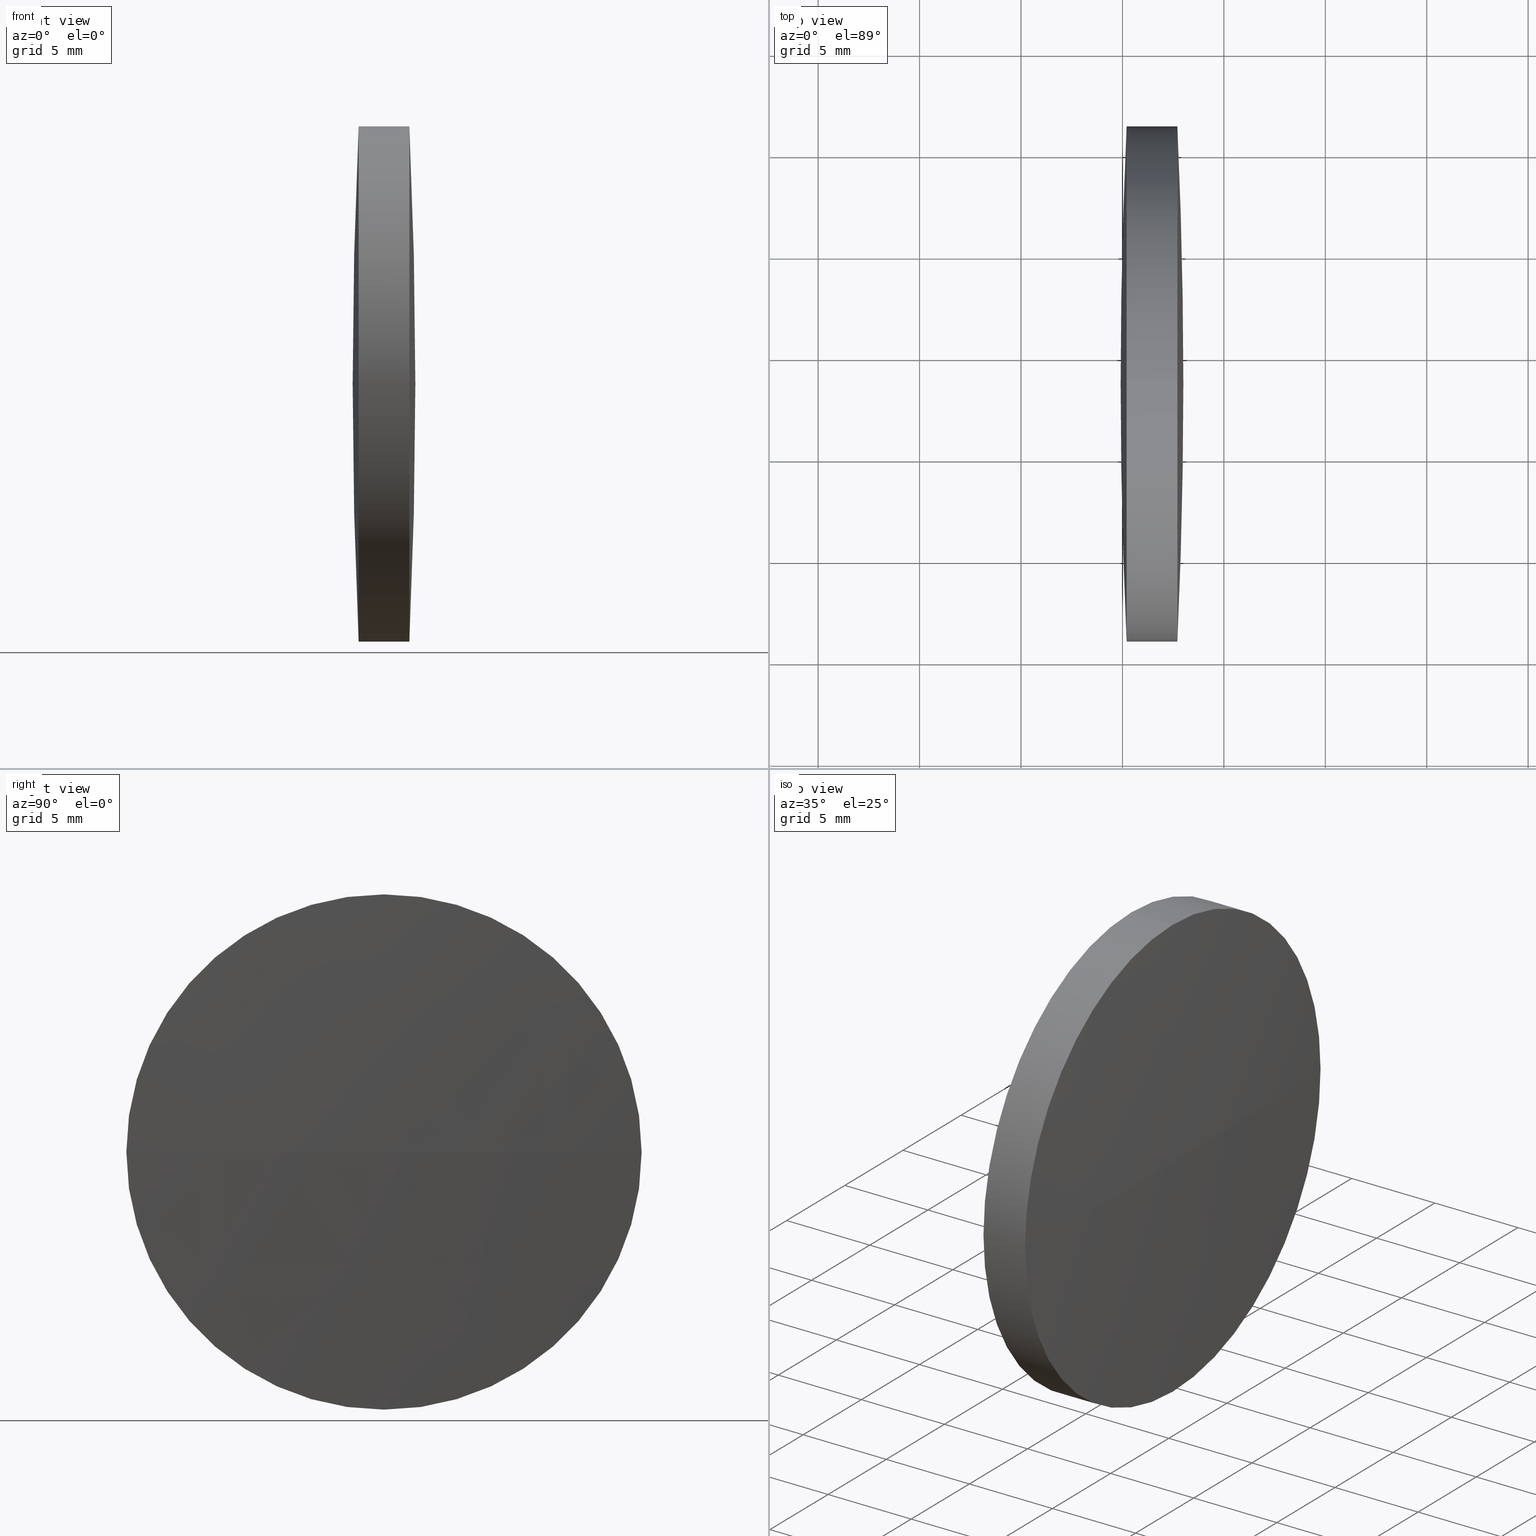
[diagram: canonical four-view strip — front | top / right | iso, engineering-drawing reading convention]
A machine part, canonical four-view strip (front | top / right | iso — engineering-drawing reading convention). The complete STEP part file that produces these views, byte-faithful:
ISO-10303-21;
HEADER;
FILE_DESCRIPTION (( 'STEP AP203' ),
    '1' );
FILE_NAME ('110101.STEP',
    '2019-07-08T06:48:02',
    ( '' ),
    ( '' ),
    'SwSTEP 2.0',
    'SolidWorks 2016',
    '' );
FILE_SCHEMA (( 'CONFIG_CONTROL_DESIGN' ));
ENDSEC;

DATA;
#1 = CARTESIAN_POINT ( 'NONE',  ( 83.37198105152673100, 48.61611302318478100, 0.0000000000000000000 ) ) ;
#2 = CALENDAR_DATE ( 2019, 8, 7 ) ;
#3 = CC_DESIGN_DATE_AND_TIME_ASSIGNMENT ( #303, #32, ( #98 ) ) ;
#4 = DIRECTION ( 'NONE',  ( 0.0000000000000000000, 0.0000000000000000000, 1.000000000000000000 ) ) ;
#5 = CALENDAR_DATE ( 2019, 8, 7 ) ;
#6 = EDGE_CURVE ( 'NONE', #74, #83, #142, .T. ) ;
#7 = VERTEX_POINT ( 'NONE', #86 ) ;
#8 = DIRECTION ( 'NONE',  ( 0.0000000000000000000, 1.000000000000000000, 1.224646799147353200E-016 ) ) ;
#9 = ORIENTED_EDGE ( 'NONE', *, *, #302, .F. ) ;
#10 = CARTESIAN_POINT ( 'NONE',  ( 85.20819446037681600, 48.61611302318478100, 0.0000000000000000000 ) ) ;
#11 = APPLICATION_PROTOCOL_DEFINITION ( 'international standard', 'config_control_design', 1994, #167 ) ;
#12 = DIRECTION ( 'NONE',  ( -0.0000000000000000000, 0.0000000000000000000, 1.000000000000000000 ) ) ;
#13 = PERSON_AND_ORGANIZATION ( #242, #279 ) ;
#14 = DIRECTION ( 'NONE',  ( 0.0000000000000000000, 1.000000000000000000, 0.0000000000000000000 ) ) ;
#15 = EDGE_CURVE ( 'NONE', #249, #7, #320, .T. ) ;
#16 = AXIS2_PLACEMENT_3D ( 'NONE', #67, #38, #14 ) ;
#17 = ORIENTED_EDGE ( 'NONE', *, *, #55, .T. ) ;
#18 = PERSON_AND_ORGANIZATION ( #242, #279 ) ;
#19 = CC_DESIGN_APPROVAL ( #84, ( #201 ) ) ;
#20 = PERSON_AND_ORGANIZATION ( #242, #279 ) ;
#21 = DESIGN_CONTEXT ( 'detailed design', #124, 'design' ) ;
#22 = APPLICATION_PROTOCOL_DEFINITION ( 'international standard', 'config_control_design', 1994, #124 ) ;
#23 = ORIENTED_EDGE ( 'NONE', *, *, #139, .F. ) ;
#24 = PERSON_AND_ORGANIZATION ( #242, #279 ) ;
#25 = EDGE_CURVE ( 'NONE', #301, #7, #75, .T. ) ;
#26 = PRODUCT ( '110101', '110101', '', ( #110 ) ) ;
#27 = EDGE_LOOP ( 'NONE', ( #95, #324, #232, #328 ) ) ;
#28 = PERSON_AND_ORGANIZATION ( #242, #279 ) ;
#29 = APPROVAL ( #169, 'δָ��' ) ;
#30 = DATE_AND_TIME ( #250, #309 ) ;
#31 = CARTESIAN_POINT ( 'NONE',  ( 85.20819446037681600, 48.61611302318478100, 0.0000000000000000000 ) ) ;
#32 = DATE_TIME_ROLE ( 'classification_date' ) ;
#33 = DIRECTION ( 'NONE',  ( -1.000000000000000000, -0.0000000000000000000, -0.0000000000000000000 ) ) ;
#34 = PRODUCT_DEFINITION_SHAPE ( 'NONE', 'NONE',  #233 ) ;
#35 = APPLICATION_CONTEXT ( 'configuration controlled 3d designs of mechanical parts and assemblies' ) ;
#36 = COORDINATED_UNIVERSAL_TIME_OFFSET ( 8, 0, .AHEAD. ) ;
#37 = ORIENTED_EDGE ( 'NONE', *, *, #176, .F. ) ;
#38 = DIRECTION ( 'NONE',  ( -0.0000000000000000000, 0.0000000000000000000, -1.000000000000000000 ) ) ;
#39 = SHAPE_DEFINITION_REPRESENTATION ( #268, #264 ) ;
#40 = PERSON_AND_ORGANIZATION ( #242, #279 ) ;
#41 = CIRCLE ( 'NONE', #137, 12.69999999999999600 ) ;
#42 = EDGE_CURVE ( 'NONE', #7, #178, #262, .T. ) ;
#43 = DATE_AND_TIME ( #190, #181 ) ;
#44 = CARTESIAN_POINT ( 'NONE',  ( 358.4720611425593100, 48.61611302318401300, 0.0000000000000000000 ) ) ;
#45 = ORIENTED_EDGE ( 'NONE', *, *, #302, .T. ) ;
#46 = EDGE_CURVE ( 'NONE', #306, #162, #286, .T. ) ;
#47 = PERSON_AND_ORGANIZATION ( #242, #279 ) ;
#48 = CC_DESIGN_SECURITY_CLASSIFICATION ( #98, ( #275 ) ) ;
#49 = PERSON_AND_ORGANIZATION_ROLE ( 'creator' ) ;
#50 = CC_DESIGN_PERSON_AND_ORGANIZATION_ASSIGNMENT ( #20, #216, ( #207 ) ) ;
#51 = APPROVAL_DATE_TIME ( #77, #84 ) ;
#52 = EDGE_LOOP ( 'NONE', ( #175, #17, #184, #226, #79, #318 ) ) ;
#53 = COORDINATED_UNIVERSAL_TIME_OFFSET ( 8, 0, .AHEAD. ) ;
#54 = DIRECTION ( 'NONE',  ( 0.0000000000000000000, 0.0000000000000000000, 1.000000000000000000 ) ) ;
#55 = EDGE_CURVE ( 'NONE', #301, #235, #108, .T. ) ;
#56 = DIRECTION ( 'NONE',  ( 0.0000000000000000000, 0.0000000000000000000, 1.000000000000000000 ) ) ;
#57 = PERSON_AND_ORGANIZATION_ROLE ( 'creator' ) ;
#58 = ORIENTED_EDGE ( 'NONE', *, *, #92, .T. ) ;
#59 = CARTESIAN_POINT ( 'NONE',  ( -185.5556735932195200, 48.61611302318475200, 0.0000000000000000000 ) ) ;
#60 = CALENDAR_DATE ( 2019, 8, 7 ) ;
#61 = FACE_OUTER_BOUND ( 'NONE', #27, .T. ) ;
#62 = DESIGN_CONTEXT ( 'detailed design', #198, 'design' ) ;
#63 = LOCAL_TIME ( 14, 48, 2.000000000000000000, #53 ) ;
#64 = CARTESIAN_POINT ( 'NONE',  ( -185.5556735932195200, 48.61611302318475200, 0.0000000000000000000 ) ) ;
#65 = COORDINATED_UNIVERSAL_TIME_OFFSET ( 8, 0, .AHEAD. ) ;
#66 = EDGE_CURVE ( 'NONE', #178, #243, #69, .T. ) ;
#67 = CARTESIAN_POINT ( 'NONE',  ( 358.4720611425593100, 48.61611302318401300, 0.0000000000000000000 ) ) ;
#68 = APPROVAL ( #333, 'δָ��' ) ;
#69 = CIRCLE ( 'NONE', #326, 273.5588251804310300 ) ;
#70 = DATE_AND_TIME ( #60, #265 ) ;
#71 = CARTESIAN_POINT ( 'NONE',  ( 87.70819308894824900, 48.61611302318478100, -12.69999999999999600 ) ) ;
#72 = PERSON_AND_ORGANIZATION_ROLE ( 'design_supplier' ) ;
#73 = CARTESIAN_POINT ( 'NONE',  ( 0.0000000000000000000, 0.0000000000000000000, 0.0000000000000000000 ) ) ;
#74 = VERTEX_POINT ( 'NONE', #164 ) ;
#75 = LINE ( 'NONE', #88, #187 ) ;
#76 = DATE_TIME_ROLE ( 'creation_date' ) ;
#77 = DATE_AND_TIME ( #293, #159 ) ;
#78 = CC_DESIGN_APPROVAL ( #68, ( #233 ) ) ;
#79 = ORIENTED_EDGE ( 'NONE', *, *, #92, .F. ) ;
#80 = APPROVAL_STATUS ( 'not_yet_approved' ) ;
#81 = DIRECTION ( 'NONE',  ( -1.000000000000000000, -0.0000000000000000000, -0.0000000000000000000 ) ) ;
#82 = DATE_AND_TIME ( #2, #63 ) ;
#83 = VERTEX_POINT ( 'NONE', #140 ) ;
#84 = APPROVAL ( #269, 'δָ��' ) ;
#85 = APPROVAL_DATE_TIME ( #236, #179 ) ;
#86 = CARTESIAN_POINT ( 'NONE',  ( 85.20819446037681600, 48.61611302318478100, -12.69999999999999600 ) ) ;
#87 = CARTESIAN_POINT ( 'NONE',  ( 87.70819308894824900, 48.61611302318478100, 0.0000000000000000000 ) ) ;
#88 = CARTESIAN_POINT ( 'NONE',  ( 83.37198105152673100, 48.61611302318478100, -12.69999999999999600 ) ) ;
#89 = CYLINDRICAL_SURFACE ( 'NONE', #211, 12.69999999999999600 ) ;
#90 = EDGE_LOOP ( 'NONE', ( #154, #219, #133, #278 ) ) ;
#91 = DATE_AND_TIME ( #163, #270 ) ;
#92 = EDGE_CURVE ( 'NONE', #178, #162, #41, .T. ) ;
#93 = ORIENTED_EDGE ( 'NONE', *, *, #25, .T. ) ;
#94 = SPHERICAL_SURFACE ( 'NONE', #218, 273.5588251804163100 ) ;
#95 = ORIENTED_EDGE ( 'NONE', *, *, #15, .T. ) ;
#96 =( NAMED_UNIT ( * ) SI_UNIT ( $, .STERADIAN. ) SOLID_ANGLE_UNIT ( ) );
#97 = APPROVAL_DATE_TIME ( #30, #145 ) ;
#98 = SECURITY_CLASSIFICATION ( '', '', #274 ) ;
#99 = DIRECTION ( 'NONE',  ( 0.0000000000000000000, 0.0000000000000000000, 1.000000000000000000 ) ) ;
#100 = CC_DESIGN_PERSON_AND_ORGANIZATION_ASSIGNMENT ( #202, #307, ( #256 ) ) ;
#101 = PERSON_AND_ORGANIZATION_ROLE ( 'creator' ) ;
#102 = ADVANCED_FACE ( 'NONE', ( #121 ), #89, .T. ) ;
#103 = CYLINDRICAL_SURFACE ( 'NONE', #329, 12.69999999999999600 ) ;
#104 = CIRCLE ( 'NONE', #229, 273.5588251804163100 ) ;
#105 = APPROVAL_PERSON_ORGANIZATION ( #28, #145, #109 ) ;
#106 = ORIENTED_EDGE ( 'NONE', *, *, #46, .F. ) ;
#107 = LOCAL_TIME ( 14, 48, 2.000000000000000000, #330 ) ;
#108 = CIRCLE ( 'NONE', #311, 12.69999999999999600 ) ;
#109 = APPROVAL_ROLE ( '' ) ;
#110 = MECHANICAL_CONTEXT ( 'NONE', #167, 'mechanical' ) ;
#111 = DATE_TIME_ROLE ( 'creation_date' ) ;
#112 = APPLICATION_PROTOCOL_DEFINITION ( 'international standard', 'config_control_design', 1994, #35 ) ;
#113 = CIRCLE ( 'NONE', #151, 12.69999999999999600 ) ;
#114 = PERSON_AND_ORGANIZATION ( #242, #279 ) ;
#115 = CARTESIAN_POINT ( 'NONE',  ( 87.70819308894824900, 48.61611302318478100, 0.0000000000000000000 ) ) ;
#116 = DIRECTION ( 'NONE',  ( -0.0000000000000000000, 0.0000000000000000000, -1.000000000000000000 ) ) ;
#117 = PERSON_AND_ORGANIZATION ( #242, #279 ) ;
#118 = CC_DESIGN_PERSON_AND_ORGANIZATION_ASSIGNMENT ( #323, #141, ( #26 ) ) ;
#119 = CC_DESIGN_SECURITY_CLASSIFICATION ( #256, ( #207 ) ) ;
#120 = CIRCLE ( 'NONE', #280, 12.69999999999999600 ) ;
#121 = FACE_OUTER_BOUND ( 'NONE', #52, .T. ) ;
#122 = COORDINATED_UNIVERSAL_TIME_OFFSET ( 8, 0, .AHEAD. ) ;
#123 = FACE_OUTER_BOUND ( 'NONE', #157, .T. ) ;
#124 = APPLICATION_CONTEXT ( 'configuration controlled 3d designs of mechanical parts and assemblies' ) ;
#125 = ORIENTED_EDGE ( 'NONE', *, *, #153, .F. ) ;
#126 = AXIS2_PLACEMENT_3D ( 'NONE', #147, #116, #291 ) ;
#127 = CARTESIAN_POINT ( 'NONE',  ( 87.70819308894824900, 48.61611302318478100, 12.69999999999999600 ) ) ;
#128 = LOCAL_TIME ( 14, 48, 2.000000000000000000, #245 ) ;
#129 = APPROVAL_ROLE ( '' ) ;
#130 = PERSON_AND_ORGANIZATION_ROLE ( 'creator' ) ;
#131 =( LENGTH_UNIT ( ) NAMED_UNIT ( * ) SI_UNIT ( .MILLI., .METRE. ) );
#132 = EDGE_CURVE ( 'NONE', #83, #301, #113, .T. ) ;
#133 = ORIENTED_EDGE ( 'NONE', *, *, #55, .F. ) ;
#134 = COORDINATED_UNIVERSAL_TIME_OFFSET ( 8, 0, .AHEAD. ) ;
#135 = SPHERICAL_SURFACE ( 'NONE', #222, 273.5588251804163100 ) ;
#136 = MANIFOLD_SOLID_BREP ( '��ת1', #150 ) ;
#137 = AXIS2_PLACEMENT_3D ( 'NONE', #31, #224, #310 ) ;
#138 = APPROVAL_DATE_TIME ( #91, #183 ) ;
#139 = EDGE_CURVE ( 'NONE', #74, #235, #104, .T. ) ;
#140 = CARTESIAN_POINT ( 'NONE',  ( 87.70819308894824900, 61.31611302318465600, 0.0000000000000000000 ) ) ;
#141 = PERSON_AND_ORGANIZATION_ROLE ( 'design_owner' ) ;
#142 = CIRCLE ( 'NONE', #294, 273.5588251804163100 ) ;
#143 = CARTESIAN_POINT ( 'NONE',  ( 87.70819308894824900, 48.61611302318478100, 0.0000000000000000000 ) ) ;
#144 = APPROVAL_STATUS ( 'not_yet_approved' ) ;
#145 = APPROVAL ( #80, 'δָ��' ) ;
#146 = COORDINATED_UNIVERSAL_TIME_OFFSET ( 8, 0, .AHEAD. ) ;
#147 = CARTESIAN_POINT ( 'NONE',  ( 358.4720611425593100, 48.61611302318401300, 0.0000000000000000000 ) ) ;
#148 = DIRECTION ( 'NONE',  ( -1.000000000000000000, -0.0000000000000000000, -0.0000000000000000000 ) ) ;
#149 = CC_DESIGN_DATE_AND_TIME_ASSIGNMENT ( #43, #273, ( #256 ) ) ;
#150 = CLOSED_SHELL ( 'NONE', ( #287, #165, #194, #253, #305, #102 ) ) ;
#151 = AXIS2_PLACEMENT_3D ( 'NONE', #143, #33, #56 ) ;
#152 = DIRECTION ( 'NONE',  ( -1.000000000000000000, -0.0000000000000000000, -0.0000000000000000000 ) ) ;
#153 = EDGE_CURVE ( 'NONE', #306, #83, #336, .T. ) ;
#154 = ORIENTED_EDGE ( 'NONE', *, *, #6, .F. ) ;
#155 = AXIS2_PLACEMENT_3D ( 'NONE', #73, #99, #334 ) ;
#156 = APPROVAL_PERSON_ORGANIZATION ( #234, #68, #257 ) ;
#157 = EDGE_LOOP ( 'NONE', ( #247, #58, #45, #267 ) ) ;
#158 = APPROVAL_STATUS ( 'not_yet_approved' ) ;
#159 = LOCAL_TIME ( 14, 48, 2.000000000000000000, #146 ) ;
#160 = CC_DESIGN_PERSON_AND_ORGANIZATION_ASSIGNMENT ( #276, #130, ( #207 ) ) ;
#161 = CC_DESIGN_PERSON_AND_ORGANIZATION_ASSIGNMENT ( #24, #57, ( #233 ) ) ;
#162 = VERTEX_POINT ( 'NONE', #289 ) ;
#163 = CALENDAR_DATE ( 2019, 8, 7 ) ;
#164 = CARTESIAN_POINT ( 'NONE',  ( 88.00315158719676800, 48.61611302318476600, 0.0000000000000000000 ) ) ;
#165 = ADVANCED_FACE ( 'NONE', ( #173 ), #94, .T. ) ;
#166 = CC_DESIGN_PERSON_AND_ORGANIZATION_ASSIGNMENT ( #221, #171, ( #214 ) ) ;
#167 = APPLICATION_CONTEXT ( 'configuration controlled 3d designs of mechanical parts and assemblies' ) ;
#168 = CARTESIAN_POINT ( 'NONE',  ( 83.37198105152673100, 48.61611302318478100, 0.0000000000000000000 ) ) ;
#169 = APPROVAL_STATUS ( 'not_yet_approved' ) ;
#170 = DIRECTION ( 'NONE',  ( -1.000000000000000000, -0.0000000000000000000, -0.0000000000000000000 ) ) ;
#171 = PERSON_AND_ORGANIZATION_ROLE ( 'design_owner' ) ;
#172 = CARTESIAN_POINT ( 'NONE',  ( -185.5556735932195200, 48.61611302318475200, 0.0000000000000000000 ) ) ;
#173 = FACE_OUTER_BOUND ( 'NONE', #90, .T. ) ;
#174 = DIRECTION ( 'NONE',  ( -1.000000000000000000, -0.0000000000000000000, -0.0000000000000000000 ) ) ;
#175 = ORIENTED_EDGE ( 'NONE', *, *, #25, .F. ) ;
#176 = EDGE_CURVE ( 'NONE', #235, #306, #315, .T. ) ;
#177 =( GEOMETRIC_REPRESENTATION_CONTEXT ( 3 ) GLOBAL_UNCERTAINTY_ASSIGNED_CONTEXT ( ( #238 ) ) GLOBAL_UNIT_ASSIGNED_CONTEXT ( ( #131, #217, #96 ) ) REPRESENTATION_CONTEXT ( 'NONE', 'WORKASPACE' ) );
#178 = VERTEX_POINT ( 'NONE', #204 ) ;
#179 = APPROVAL ( #158, 'δָ��' ) ;
#180 = DIRECTION ( 'NONE',  ( 0.0000000000000000000, 1.000000000000000000, 0.0000000000000000000 ) ) ;
#181 = LOCAL_TIME ( 14, 48, 2.000000000000000000, #122 ) ;
#182 = DIRECTION ( 'NONE',  ( 1.000000000000000000, 0.0000000000000000000, 0.0000000000000000000 ) ) ;
#183 = APPROVAL ( #144, 'δָ��' ) ;
#184 = ORIENTED_EDGE ( 'NONE', *, *, #176, .T. ) ;
#185 = COORDINATED_UNIVERSAL_TIME_OFFSET ( 8, 0, .AHEAD. ) ;
#186 = DIRECTION ( 'NONE',  ( 1.000000000000000000, 0.0000000000000000000, 0.0000000000000000000 ) ) ;
#187 = VECTOR ( 'NONE', #284, 1000.000000000000000 ) ;
#188 = CC_DESIGN_DATE_AND_TIME_ASSIGNMENT ( #70, #76, ( #201 ) ) ;
#189 = FACE_OUTER_BOUND ( 'NONE', #299, .T. ) ;
#190 = CALENDAR_DATE ( 2019, 8, 7 ) ;
#191 = APPROVAL_PERSON_ORGANIZATION ( #40, #29, #197 ) ;
#192 = ORIENTED_EDGE ( 'NONE', *, *, #6, .T. ) ;
#193 = PERSON_AND_ORGANIZATION ( #242, #279 ) ;
#194 = ADVANCED_FACE ( 'NONE', ( #61 ), #203, .T. ) ;
#195 = AXIS2_PLACEMENT_3D ( 'NONE', #308, #170, #254 ) ;
#196 = AXIS2_PLACEMENT_3D ( 'NONE', #115, #174, #342 ) ;
#197 = APPROVAL_ROLE ( '' ) ;
#198 = APPLICATION_CONTEXT ( 'configuration controlled 3d designs of mechanical parts and assemblies' ) ;
#199 = DIRECTION ( 'NONE',  ( 0.0000000000000000000, 0.0000000000000000000, 1.000000000000000000 ) ) ;
#200 = DIRECTION ( 'NONE',  ( 1.000000000000000000, 0.0000000000000000000, 0.0000000000000000000 ) ) ;
#201 = PRODUCT_DEFINITION ( 'δ֪', '', #207, #21 ) ;
#202 = PERSON_AND_ORGANIZATION ( #242, #279 ) ;
#203 = SPHERICAL_SURFACE ( 'NONE', #16, 273.5588251804310300 ) ;
#204 = CARTESIAN_POINT ( 'NONE',  ( 85.20819446037680200, 35.91611302318423100, -1.555301434917111200E-015 ) ) ;
#205 = AXIS2_PLACEMENT_3D ( 'NONE', #44, #213, #182 ) ;
#206 = DATE_AND_TIME ( #341, #128 ) ;
#207 = PRODUCT_DEFINITION_FORMATION_WITH_SPECIFIED_SOURCE ( '�κ�', '', #214, .NOT_KNOWN. ) ;
#208 = ORIENTED_EDGE ( 'NONE', *, *, #15, .F. ) ;
#209 = APPROVAL_PERSON_ORGANIZATION ( #114, #179, #271 ) ;
#210 = CARTESIAN_POINT ( 'NONE',  ( 85.20819446037681600, 48.61611302318478100, 0.0000000000000000000 ) ) ;
#211 = AXIS2_PLACEMENT_3D ( 'NONE', #168, #252, #332 ) ;
#212 = APPROVAL_PERSON_ORGANIZATION ( #18, #183, #129 ) ;
#213 = DIRECTION ( 'NONE',  ( -0.0000000000000000000, 0.0000000000000000000, 1.000000000000000000 ) ) ;
#214 = PRODUCT ( '110101', '110101', '', ( #230 ) ) ;
#215 = DIRECTION ( 'NONE',  ( 0.0000000000000000000, 0.0000000000000000000, 1.000000000000000000 ) ) ;
#216 = PERSON_AND_ORGANIZATION_ROLE ( 'design_supplier' ) ;
#217 =( NAMED_UNIT ( * ) PLANE_ANGLE_UNIT ( ) SI_UNIT ( $, .RADIAN. ) );
#218 = AXIS2_PLACEMENT_3D ( 'NONE', #64, #228, #290 ) ;
#219 = ORIENTED_EDGE ( 'NONE', *, *, #139, .T. ) ;
#220 = CC_DESIGN_APPROVAL ( #179, ( #207 ) ) ;
#221 = PERSON_AND_ORGANIZATION ( #242, #279 ) ;
#222 = AXIS2_PLACEMENT_3D ( 'NONE', #297, #244, #180 ) ;
#223 = DIRECTION ( 'NONE',  ( 0.0000000000000000000, 1.224646799147353200E-016, -1.000000000000000000 ) ) ;
#224 = DIRECTION ( 'NONE',  ( -1.000000000000000000, -0.0000000000000000000, -0.0000000000000000000 ) ) ;
#225 = CC_DESIGN_APPROVAL ( #145, ( #256 ) ) ;
#226 = ORIENTED_EDGE ( 'NONE', *, *, #46, .T. ) ;
#227 = DATE_AND_TIME ( #5, #263 ) ;
#228 = DIRECTION ( 'NONE',  ( -0.0000000000000000000, 0.0000000000000000000, -1.000000000000000000 ) ) ;
#229 = AXIS2_PLACEMENT_3D ( 'NONE', #172, #231, #316 ) ;
#230 = MECHANICAL_CONTEXT ( 'NONE', #35, 'mechanical' ) ;
#231 = DIRECTION ( 'NONE',  ( 0.0000000000000000000, 1.224646799147353200E-016, -1.000000000000000000 ) ) ;
#232 = ORIENTED_EDGE ( 'NONE', *, *, #66, .T. ) ;
#233 = PRODUCT_DEFINITION ( 'δ֪', '', #275, #62 ) ;
#234 = PERSON_AND_ORGANIZATION ( #242, #279 ) ;
#235 = VERTEX_POINT ( 'NONE', #261 ) ;
#236 = DATE_AND_TIME ( #344, #258 ) ;
#237 = CC_DESIGN_PERSON_AND_ORGANIZATION_ASSIGNMENT ( #13, #101, ( #201 ) ) ;
#238 = UNCERTAINTY_MEASURE_WITH_UNIT (LENGTH_MEASURE( 1.000000000000000100E-005 ), #131, 'distance_accuracy_value', 'NONE');
#239 = DIRECTION ( 'NONE',  ( -1.000000000000000000, -0.0000000000000000000, -0.0000000000000000000 ) ) ;
#240 = DIRECTION ( 'NONE',  ( 0.0000000000000000000, 0.0000000000000000000, 1.000000000000000000 ) ) ;
#241 = AXIS2_PLACEMENT_3D ( 'NONE', #246, #4, #186 ) ;
#242 = PERSON ( 'δָ��', 'δָ��', 'δָ��', ('δָ��'), ('δָ��'), ('δָ��') ) ;
#243 = VERTEX_POINT ( 'NONE', #312 ) ;
#244 = DIRECTION ( 'NONE',  ( -0.0000000000000000000, 0.0000000000000000000, -1.000000000000000000 ) ) ;
#245 = COORDINATED_UNIVERSAL_TIME_OFFSET ( 8, 0, .AHEAD. ) ;
#246 = CARTESIAN_POINT ( 'NONE',  ( 0.0000000000000000000, 0.0000000000000000000, 0.0000000000000000000 ) ) ;
#247 = ORIENTED_EDGE ( 'NONE', *, *, #66, .F. ) ;
#248 = PRODUCT_RELATED_PRODUCT_CATEGORY ( 'detail', '', ( #214 ) ) ;
#249 = VERTEX_POINT ( 'NONE', #339 ) ;
#250 = CALENDAR_DATE ( 2019, 8, 7 ) ;
#251 = CC_DESIGN_DATE_AND_TIME_ASSIGNMENT ( #206, #111, ( #233 ) ) ;
#252 = DIRECTION ( 'NONE',  ( -1.000000000000000000, -0.0000000000000000000, -0.0000000000000000000 ) ) ;
#253 = ADVANCED_FACE ( 'NONE', ( #123 ), #338, .T. ) ;
#254 = DIRECTION ( 'NONE',  ( 0.0000000000000000000, 0.0000000000000000000, 1.000000000000000000 ) ) ;
#255 = APPLICATION_PROTOCOL_DEFINITION ( 'international standard', 'config_control_design', 1994, #198 ) ;
#256 = SECURITY_CLASSIFICATION ( '', '', #282 ) ;
#257 = APPROVAL_ROLE ( '' ) ;
#258 = LOCAL_TIME ( 14, 48, 2.000000000000000000, #134 ) ;
#259 = CC_DESIGN_APPROVAL ( #183, ( #275 ) ) ;
#260 = CALENDAR_DATE ( 2019, 8, 7 ) ;
#261 = CARTESIAN_POINT ( 'NONE',  ( 87.70819308894824900, 35.91611302318488400, -1.555301434917123000E-015 ) ) ;
#262 = CIRCLE ( 'NONE', #314, 12.69999999999999600 ) ;
#263 = LOCAL_TIME ( 14, 48, 2.000000000000000000, #65 ) ;
#264 = ADVANCED_BREP_SHAPE_REPRESENTATION ( '110101', ( #136, #241 ), #177 ) ;
#265 = LOCAL_TIME ( 14, 48, 2.000000000000000000, #337 ) ;
#266 = CIRCLE ( 'NONE', #205, 273.5588251804310300 ) ;
#267 = ORIENTED_EDGE ( 'NONE', *, *, #272, .T. ) ;
#268 = PRODUCT_DEFINITION_SHAPE ( 'NONE', 'NONE',  #201 ) ;
#269 = APPROVAL_STATUS ( 'not_yet_approved' ) ;
#270 = LOCAL_TIME ( 14, 48, 2.000000000000000000, #185 ) ;
#271 = APPROVAL_ROLE ( '' ) ;
#272 = EDGE_CURVE ( 'NONE', #249, #243, #266, .T. ) ;
#273 = DATE_TIME_ROLE ( 'classification_date' ) ;
#274 = SECURITY_CLASSIFICATION_LEVEL ( 'unclassified' ) ;
#275 = PRODUCT_DEFINITION_FORMATION_WITH_SPECIFIED_SOURCE ( '�κ�', '', #26, .NOT_KNOWN. ) ;
#276 = PERSON_AND_ORGANIZATION ( #242, #279 ) ;
#277 = FACE_OUTER_BOUND ( 'NONE', #340, .T. ) ;
#278 = ORIENTED_EDGE ( 'NONE', *, *, #132, .F. ) ;
#279 = ORGANIZATION ( 'δָ��', 'δָ��', '' ) ;
#280 = AXIS2_PLACEMENT_3D ( 'NONE', #210, #239, #215 ) ;
#281 = DIRECTION ( 'NONE',  ( -1.000000000000000000, -0.0000000000000000000, -0.0000000000000000000 ) ) ;
#282 = SECURITY_CLASSIFICATION_LEVEL ( 'unclassified' ) ;
#283 = CARTESIAN_POINT ( 'NONE',  ( 83.37198105152673100, 48.61611302318478100, 12.69999999999999600 ) ) ;
#284 = DIRECTION ( 'NONE',  ( -1.000000000000000000, -0.0000000000000000000, -0.0000000000000000000 ) ) ;
#285 = CARTESIAN_POINT ( 'NONE',  ( 87.70819308894824900, 48.61611302318478100, 0.0000000000000000000 ) ) ;
#286 = LINE ( 'NONE', #283, #343 ) ;
#287 = ADVANCED_FACE ( 'NONE', ( #277 ), #103, .T. ) ;
#288 = PERSON_AND_ORGANIZATION ( #242, #279 ) ;
#289 = CARTESIAN_POINT ( 'NONE',  ( 85.20819446037681600, 48.61611302318478100, 12.69999999999999600 ) ) ;
#290 = DIRECTION ( 'NONE',  ( 0.0000000000000000000, 1.000000000000000000, 0.0000000000000000000 ) ) ;
#291 = DIRECTION ( 'NONE',  ( 0.0000000000000000000, 1.000000000000000000, 0.0000000000000000000 ) ) ;
#292 = CC_DESIGN_PERSON_AND_ORGANIZATION_ASSIGNMENT ( #193, #49, ( #275 ) ) ;
#293 = CALENDAR_DATE ( 2019, 8, 7 ) ;
#294 = AXIS2_PLACEMENT_3D ( 'NONE', #59, #12, #200 ) ;
#295 = APPROVAL_ROLE ( '' ) ;
#296 = CC_DESIGN_PERSON_AND_ORGANIZATION_ASSIGNMENT ( #117, #72, ( #275 ) ) ;
#297 = CARTESIAN_POINT ( 'NONE',  ( -185.5556735932195200, 48.61611302318475200, 0.0000000000000000000 ) ) ;
#298 = PERSON_AND_ORGANIZATION_ROLE ( 'classification_officer' ) ;
#299 = EDGE_LOOP ( 'NONE', ( #23, #192, #125, #37 ) ) ;
#300 = APPROVAL_PERSON_ORGANIZATION ( #288, #84, #295 ) ;
#301 = VERTEX_POINT ( 'NONE', #71 ) ;
#302 = EDGE_CURVE ( 'NONE', #162, #249, #120, .T. ) ;
#303 = DATE_AND_TIME ( #260, #107 ) ;
#304 = DIRECTION ( 'NONE',  ( -1.000000000000000000, -0.0000000000000000000, -0.0000000000000000000 ) ) ;
#305 = ADVANCED_FACE ( 'NONE', ( #189 ), #135, .T. ) ;
#306 = VERTEX_POINT ( 'NONE', #127 ) ;
#307 = PERSON_AND_ORGANIZATION_ROLE ( 'classification_officer' ) ;
#308 = CARTESIAN_POINT ( 'NONE',  ( 85.20819446037681600, 48.61611302318478100, 0.0000000000000000000 ) ) ;
#309 = LOCAL_TIME ( 14, 48, 2.000000000000000000, #36 ) ;
#310 = DIRECTION ( 'NONE',  ( 0.0000000000000000000, 0.0000000000000000000, 1.000000000000000000 ) ) ;
#311 = AXIS2_PLACEMENT_3D ( 'NONE', #285, #281, #199 ) ;
#312 = CARTESIAN_POINT ( 'NONE',  ( 84.91323596212829700, 48.61611302318402700, 0.0000000000000000000 ) ) ;
#313 = DIRECTION ( 'NONE',  ( 0.0000000000000000000, 0.0000000000000000000, 1.000000000000000000 ) ) ;
#314 = AXIS2_PLACEMENT_3D ( 'NONE', #10, #304, #54 ) ;
#315 = CIRCLE ( 'NONE', #196, 12.69999999999999600 ) ;
#316 = DIRECTION ( 'NONE',  ( 0.0000000000000000000, 1.000000000000000000, 1.224646799147353200E-016 ) ) ;
#317 = CC_DESIGN_PERSON_AND_ORGANIZATION_ASSIGNMENT ( #47, #298, ( #98 ) ) ;
#318 = ORIENTED_EDGE ( 'NONE', *, *, #42, .F. ) ;
#319 = APPROVAL_DATE_TIME ( #82, #68 ) ;
#320 = CIRCLE ( 'NONE', #195, 12.69999999999999600 ) ;
#321 = PRODUCT_RELATED_PRODUCT_CATEGORY ( 'detail', '', ( #26 ) ) ;
#322 = AXIS2_PLACEMENT_3D ( 'NONE', #87, #148, #313 ) ;
#323 = PERSON_AND_ORGANIZATION ( #242, #279 ) ;
#324 = ORIENTED_EDGE ( 'NONE', *, *, #42, .T. ) ;
#325 = CC_DESIGN_APPROVAL ( #29, ( #98 ) ) ;
#326 = AXIS2_PLACEMENT_3D ( 'NONE', #335, #223, #8 ) ;
#327 = APPROVAL_DATE_TIME ( #227, #29 ) ;
#328 = ORIENTED_EDGE ( 'NONE', *, *, #272, .F. ) ;
#329 = AXIS2_PLACEMENT_3D ( 'NONE', #1, #152, #240 ) ;
#330 = COORDINATED_UNIVERSAL_TIME_OFFSET ( 8, 0, .AHEAD. ) ;
#331 = ORIENTED_EDGE ( 'NONE', *, *, #132, .T. ) ;
#332 = DIRECTION ( 'NONE',  ( 0.0000000000000000000, 0.0000000000000000000, 1.000000000000000000 ) ) ;
#333 = APPROVAL_STATUS ( 'not_yet_approved' ) ;
#334 = DIRECTION ( 'NONE',  ( 1.000000000000000000, 0.0000000000000000000, 0.0000000000000000000 ) ) ;
#335 = CARTESIAN_POINT ( 'NONE',  ( 358.4720611425593100, 48.61611302318401300, 0.0000000000000000000 ) ) ;
#336 = CIRCLE ( 'NONE', #322, 12.69999999999999600 ) ;
#337 = COORDINATED_UNIVERSAL_TIME_OFFSET ( 8, 0, .AHEAD. ) ;
#338 = SPHERICAL_SURFACE ( 'NONE', #126, 273.5588251804310300 ) ;
#339 = CARTESIAN_POINT ( 'NONE',  ( 85.20819446037680200, 61.31611302318455600, 0.0000000000000000000 ) ) ;
#340 = EDGE_LOOP ( 'NONE', ( #331, #93, #208, #9, #106, #345 ) ) ;
#341 = CALENDAR_DATE ( 2019, 8, 7 ) ;
#342 = DIRECTION ( 'NONE',  ( 0.0000000000000000000, 0.0000000000000000000, 1.000000000000000000 ) ) ;
#343 = VECTOR ( 'NONE', #81, 1000.000000000000000 ) ;
#344 = CALENDAR_DATE ( 2019, 8, 7 ) ;
#345 = ORIENTED_EDGE ( 'NONE', *, *, #153, .T. ) ;
ENDSEC;
END-ISO-10303-21;
